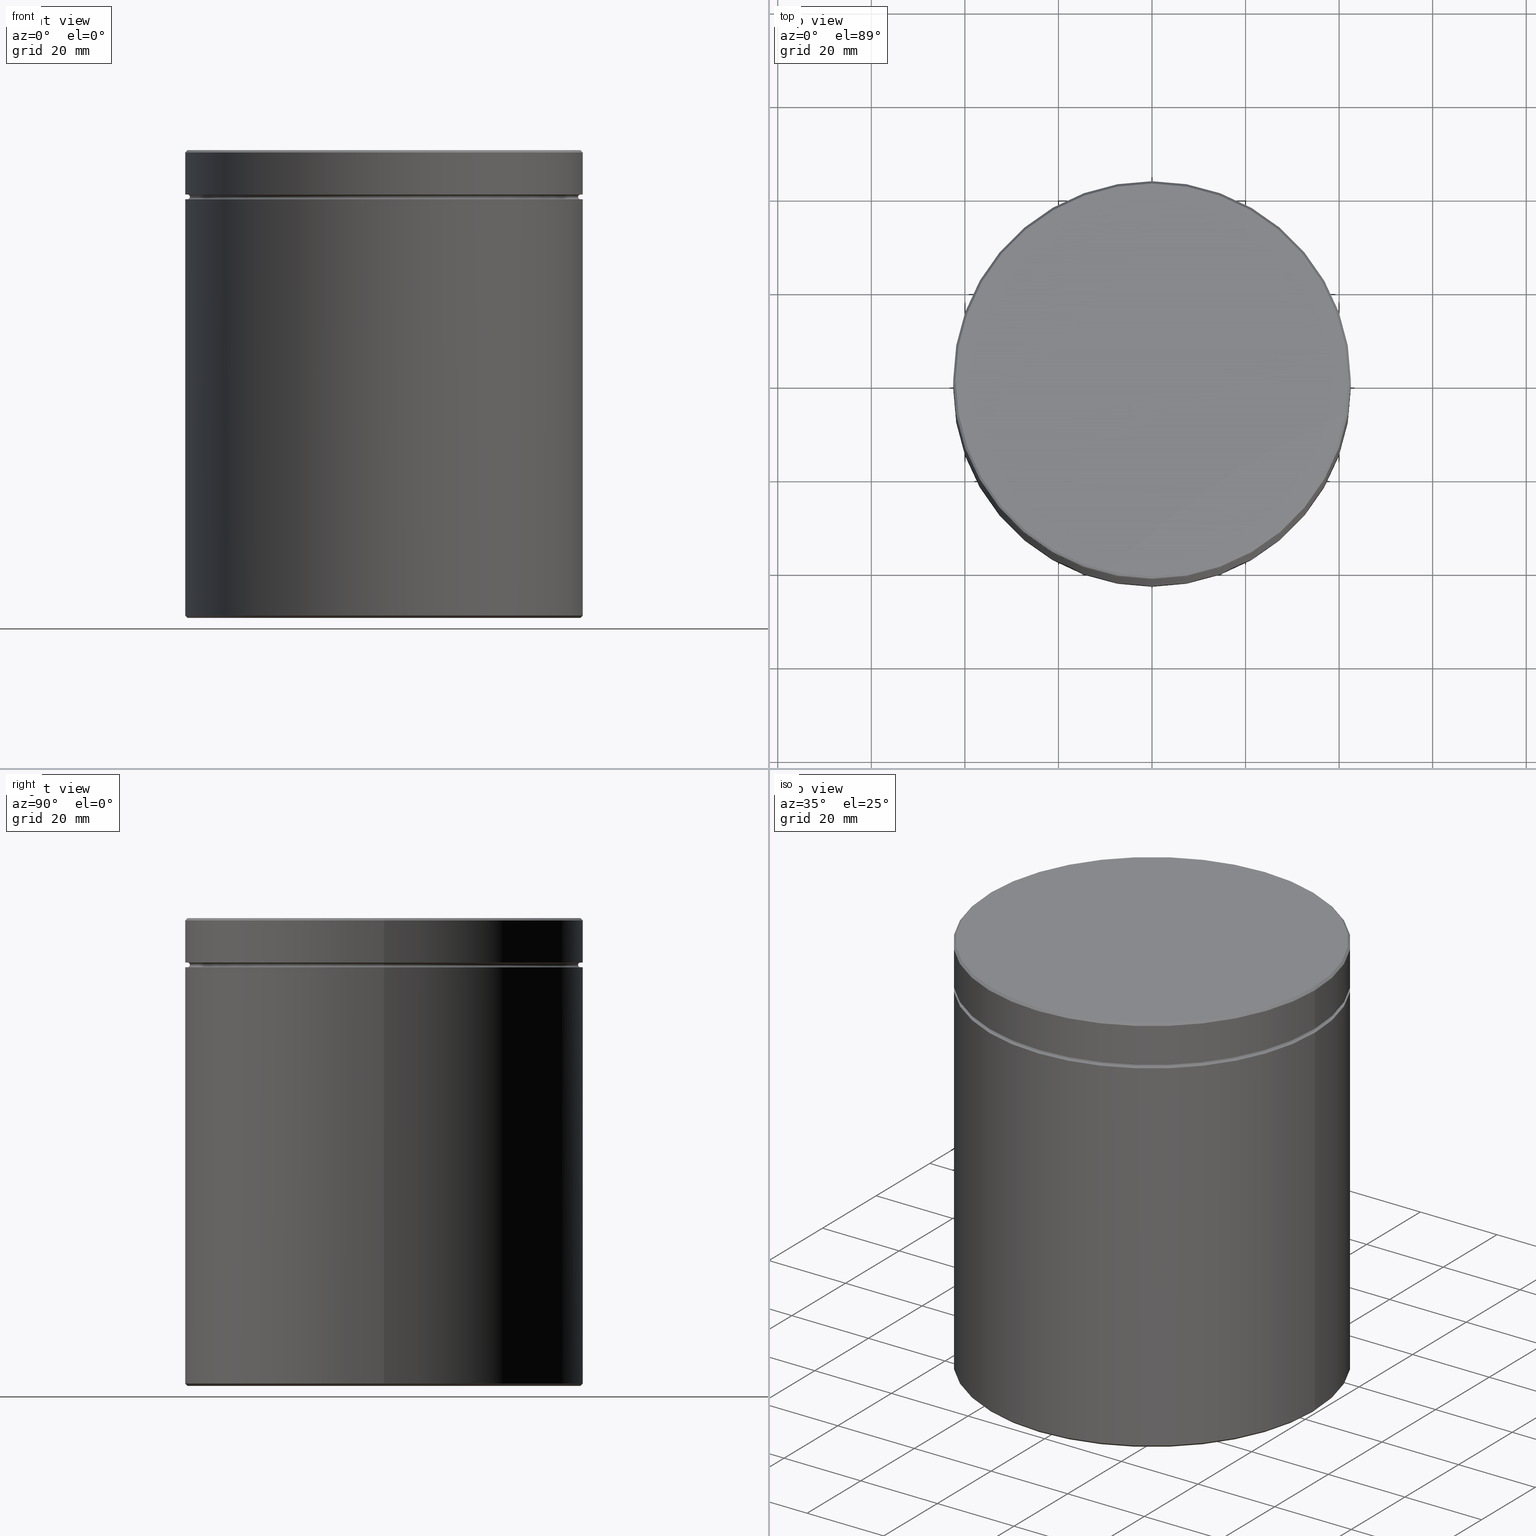
[diagram: canonical four-view strip — front | top / right | iso, engineering-drawing reading convention]
A machine part, canonical four-view strip (front | top / right | iso — engineering-drawing reading convention). The complete STEP part file that produces these views, byte-faithful:
ISO-10303-21;
HEADER;
FILE_DESCRIPTION (( 'STEP AP203' ),
    '1' );
FILE_NAME ('664b.STEP',
    '2024-01-08T12:12:43',
    ( '' ),
    ( '' ),
    'SwSTEP 2.0',
    'SolidWorks 2019',
    '' );
FILE_SCHEMA (( 'CONFIG_CONTROL_DESIGN' ));
ENDSEC;

DATA;
#1 = AXIS2_PLACEMENT_3D ( 'NONE', #100, #400, #237 ) ;
#2 = AXIS2_PLACEMENT_3D ( 'NONE', #247, #305, #340 ) ;
#3 = EDGE_CURVE ( 'NONE', #298, #158, #145, .T. ) ;
#4 = DIRECTION ( 'NONE',  ( 0.000000000000000000, -0.000000000000000000, 1.000000000000000000 ) ) ;
#5 = LOCAL_TIME ( 13, 12, 43.00000000000000000, #89 ) ;
#6 = ORIENTED_EDGE ( 'NONE', *, *, #559, .T. ) ;
#7 = DIRECTION ( 'NONE',  ( 0.000000000000000000, 0.000000000000000000, -1.000000000000000000 ) ) ;
#8 = DIRECTION ( 'NONE',  ( -1.000000000000000000, 0.000000000000000000, 0.000000000000000000 ) ) ;
#9 = PERSON_AND_ORGANIZATION ( #399, #95 ) ;
#10 = EDGE_CURVE ( 'NONE', #490, #368, #404, .T. ) ;
#11 = FACE_BOUND ( 'NONE', #415, .T. ) ;
#12 = PLANE ( 'NONE',  #364 ) ;
#13 = EDGE_CURVE ( 'NONE', #505, #20, #306, .T. ) ;
#14 = DIRECTION ( 'NONE',  ( 1.000000000000000000, 0.000000000000000000, 0.000000000000000000 ) ) ;
#15 = AXIS2_PLACEMENT_3D ( 'NONE', #393, #187, #226 ) ;
#16 = ORIENTED_EDGE ( 'NONE', *, *, #83, .T. ) ;
#17 = ORIENTED_EDGE ( 'NONE', *, *, #359, .F. ) ;
#18 = CARTESIAN_POINT ( 'NONE',  ( 0.000000000000000000, 0.000000000000000000, -10.00000000000000178 ) ) ;
#19 = VERTEX_POINT ( 'NONE', #155 ) ;
#20 = VERTEX_POINT ( 'NONE', #562 ) ;
#21 = DIRECTION ( 'NONE',  ( -0.000000000000000000, -0.000000000000000000, 1.000000000000000000 ) ) ;
#22 = APPROVAL ( #26, 'NEUR�EN�' ) ;
#23 = CC_DESIGN_APPROVAL ( #261, ( #437 ) ) ;
#24 = ORIENTED_EDGE ( 'NONE', *, *, #42, .F. ) ;
#25 = ORIENTED_EDGE ( 'NONE', *, *, #10, .T. ) ;
#26 = APPROVAL_STATUS ( 'not_yet_approved' ) ;
#27 = ORIENTED_EDGE ( 'NONE', *, *, #332, .T. ) ;
#28 = ORIENTED_EDGE ( 'NONE', *, *, #171, .T. ) ;
#29 = CIRCLE ( 'NONE', #74, 0.5000000000000004441 ) ;
#30 = FACE_OUTER_BOUND ( 'NONE', #299, .T. ) ;
#31 = ORIENTED_EDGE ( 'NONE', *, *, #13, .F. ) ;
#32 = VECTOR ( 'NONE', #193, 1000.000000000000000 ) ;
#33 = AXIS2_PLACEMENT_3D ( 'NONE', #411, #21, #154 ) ;
#34 = PLANE ( 'NONE',  #274 ) ;
#35 = PERSON_AND_ORGANIZATION ( #399, #95 ) ;
#36 = CARTESIAN_POINT ( 'NONE',  ( -31.50000000000000000, 0.000000000000000000, -29.00000000000001066 ) ) ;
#37 = ADVANCED_FACE ( 'NONE', ( #317 ), #289, .F. ) ;
#38 = DIRECTION ( 'NONE',  ( 1.000000000000000000, 0.000000000000000000, 0.000000000000000000 ) ) ;
#39 = CARTESIAN_POINT ( 'NONE',  ( -42.00000000000000000, 5.143516556418883322E-15, -10.00000000000000178 ) ) ;
#40 = ORIENTED_EDGE ( 'NONE', *, *, #83, .F. ) ;
#41 = CARTESIAN_POINT ( 'NONE',  ( -31.50000000000000000, 0.000000000000000000, -100.0000000000000000 ) ) ;
#42 = EDGE_CURVE ( 'NONE', #532, #283, #319, .T. ) ;
#43 = VECTOR ( 'NONE', #406, 1000.000000000000000 ) ;
#44 = VECTOR ( 'NONE', #512, 1000.000000000000000 ) ;
#45 = DIRECTION ( 'NONE',  ( -0.000000000000000000, -0.000000000000000000, 1.000000000000000000 ) ) ;
#46 = EDGE_LOOP ( 'NONE', ( #17, #257, #329, #314 ) ) ;
#47 = CARTESIAN_POINT ( 'NONE',  ( 0.000000000000000000, 0.000000000000000000, -0.5000000000000004441 ) ) ;
#48 = ORIENTED_EDGE ( 'NONE', *, *, #401, .T. ) ;
#49 = DIRECTION ( 'NONE',  ( 0.000000000000000000, 0.000000000000000000, -1.000000000000000000 ) ) ;
#50 = AXIS2_PLACEMENT_3D ( 'NONE', #487, #99, #138 ) ;
#51 = DIRECTION ( 'NONE',  ( -0.000000000000000000, -0.000000000000000000, 1.000000000000000000 ) ) ;
#52 = DIRECTION ( 'NONE',  ( -1.000000000000000000, 0.000000000000000000, -0.000000000000000000 ) ) ;
#53 = EDGE_CURVE ( 'NONE', #568, #298, #29, .T. ) ;
#54 = LINE ( 'NONE', #403, #117 ) ;
#55 = CC_DESIGN_DATE_AND_TIME_ASSIGNMENT ( #308, #442, ( #437 ) ) ;
#56 = DIRECTION ( 'NONE',  ( 0.000000000000000000, -0.000000000000000000, 1.000000000000000000 ) ) ;
#57 = DIRECTION ( 'NONE',  ( -1.224646799147353207E-16, 1.000000000000000000, 0.000000000000000000 ) ) ;
#58 = DESIGN_CONTEXT ( 'detailed design', #427, 'design' ) ;
#59 = DIRECTION ( 'NONE',  ( 1.000000000000000000, 0.000000000000000000, 0.000000000000000000 ) ) ;
#60 = CONICAL_SURFACE ( 'NONE', #379, 42.50000000000000000, 0.7853981633974552734 ) ;
#61 = ORIENTED_EDGE ( 'NONE', *, *, #503, .F. ) ;
#62 = ORIENTED_EDGE ( 'NONE', *, *, #148, .F. ) ;
#63 = ADVANCED_FACE ( 'NONE', ( #388 ), #174, .F. ) ;
#64 = DIRECTION ( 'NONE',  ( -1.000000000000000000, 0.000000000000000000, 0.000000000000000000 ) ) ;
#65 = CARTESIAN_POINT ( 'NONE',  ( 0.000000000000000000, 0.000000000000000000, -9.500000000000000000 ) ) ;
#66 = ORIENTED_EDGE ( 'NONE', *, *, #97, .F. ) ;
#67 = CYLINDRICAL_SURFACE ( 'NONE', #2, 42.50000000000000000 ) ;
#68 = AXIS2_PLACEMENT_3D ( 'NONE', #217, #303, #474 ) ;
#69 = VERTEX_POINT ( 'NONE', #41 ) ;
#70 = AXIS2_PLACEMENT_3D ( 'NONE', #114, #346, #75 ) ;
#71 = ORIENTED_EDGE ( 'NONE', *, *, #136, .F. ) ;
#72 = EDGE_LOOP ( 'NONE', ( #516, #28, #249, #543 ) ) ;
#73 = DIRECTION ( 'NONE',  ( -0.000000000000000000, -0.000000000000000000, 1.000000000000000000 ) ) ;
#74 = AXIS2_PLACEMENT_3D ( 'NONE', #567, #77, #356 ) ;
#75 = DIRECTION ( 'NONE',  ( 1.000000000000000000, 0.000000000000000000, 0.000000000000000000 ) ) ;
#76 = ORIENTED_EDGE ( 'NONE', *, *, #467, .F. ) ;
#77 = DIRECTION ( 'NONE',  ( -0.000000000000000000, -1.000000000000000000, -0.000000000000000000 ) ) ;
#78 = APPLICATION_CONTEXT ( 'configuration controlled 3d designs of mechanical parts and assemblies' ) ;
#79 = APPLICATION_PROTOCOL_DEFINITION ( 'international standard', 'config_control_design', 1994, #78 ) ;
#80 = AXIS2_PLACEMENT_3D ( 'NONE', #207, #469, #124 ) ;
#81 = ORIENTED_EDGE ( 'NONE', *, *, #280, .T. ) ;
#82 = FACE_OUTER_BOUND ( 'NONE', #135, .T. ) ;
#83 = EDGE_CURVE ( 'NONE', #283, #532, #352, .T. ) ;
#84 = DIRECTION ( 'NONE',  ( 0.000000000000000000, 0.000000000000000000, -1.000000000000000000 ) ) ;
#85 = CARTESIAN_POINT ( 'NONE',  ( 0.000000000000000000, 0.000000000000000000, -29.00000000000001066 ) ) ;
#86 = PERSON_AND_ORGANIZATION ( #399, #95 ) ;
#87 = AXIS2_PLACEMENT_3D ( 'NONE', #147, #4, #496 ) ;
#88 = CARTESIAN_POINT ( 'NONE',  ( 0.000000000000000000, 42.50000000000000000, -9.499999999999998224 ) ) ;
#89 = COORDINATED_UNIVERSAL_TIME_OFFSET ( 1, 0, .AHEAD. ) ;
#90 = DIRECTION ( 'NONE',  ( 1.000000000000000000, 0.000000000000000000, 0.000000000000000000 ) ) ;
#91 = CARTESIAN_POINT ( 'NONE',  ( 41.50000000000000000, 0.000000000000000000, -10.00000000000000178 ) ) ;
#92 = DATE_AND_TIME ( #233, #387 ) ;
#93 = CARTESIAN_POINT ( 'NONE',  ( 0.000000000000000000, 0.000000000000000000, 0.000000000000000000 ) ) ;
#94 = CONICAL_SURFACE ( 'NONE', #191, 41.99999999999999289, 0.7853981633974552734 ) ;
#95 = ORGANIZATION ( 'NEUR�EN�', 'NEUR�EN�', '' ) ;
#96 = PERSON_AND_ORGANIZATION ( #399, #95 ) ;
#97 = EDGE_CURVE ( 'NONE', #19, #466, #497, .T. ) ;
#98 = SECURITY_CLASSIFICATION ( '', '', #354 ) ;
#99 = DIRECTION ( 'NONE',  ( 0.000000000000000000, 0.000000000000000000, -1.000000000000000000 ) ) ;
#100 = CARTESIAN_POINT ( 'NONE',  ( 0.000000000000000000, 0.000000000000000000, -9.499999999999998224 ) ) ;
#101 = DIRECTION ( 'NONE',  ( 1.000000000000000000, 0.000000000000000000, 0.000000000000000000 ) ) ;
#102 = CYLINDRICAL_SURFACE ( 'NONE', #33, 42.50000000000000000 ) ;
#103 = CIRCLE ( 'NONE', #70, 41.99999999999999289 ) ;
#104 = CC_DESIGN_APPROVAL ( #22, ( #98 ) ) ;
#105 = ADVANCED_FACE ( 'NONE', ( #121, #209 ), #34, .T. ) ;
#106 = DIRECTION ( 'NONE',  ( 1.000000000000000000, 0.000000000000000000, 0.000000000000000000 ) ) ;
#107 = ORIENTED_EDGE ( 'NONE', *, *, #445, .F. ) ;
#108 = ADVANCED_FACE ( 'NONE', ( #520 ), #244, .T. ) ;
#109 = DIRECTION ( 'NONE',  ( 1.000000000000000000, 0.000000000000000000, 0.000000000000000000 ) ) ;
#110 = ADVANCED_FACE ( 'NONE', ( #436 ), #126, .F. ) ;
#111 = ORIENTED_EDGE ( 'NONE', *, *, #320, .F. ) ;
#112 = CIRCLE ( 'NONE', #454, 42.50000000000000000 ) ;
#113 = EDGE_LOOP ( 'NONE', ( #107, #389, #414, #413 ) ) ;
#114 = CARTESIAN_POINT ( 'NONE',  ( 0.000000000000000000, 0.000000000000000000, 0.000000000000000000 ) ) ;
#115 = AXIS2_PLACEMENT_3D ( 'NONE', #558, #132, #424 ) ;
#116 = VERTEX_POINT ( 'NONE', #391 ) ;
#117 = VECTOR ( 'NONE', #238, 1000.000000000000000 ) ;
#118 = CC_DESIGN_PERSON_AND_ORGANIZATION_ASSIGNMENT ( #35, #511, ( #264 ) ) ;
#119 = CARTESIAN_POINT ( 'NONE',  ( -42.50000000000000000, 5.204748896376250896E-15, -99.49999999999997158 ) ) ;
#120 = DIRECTION ( 'NONE',  ( -0.000000000000000000, -0.000000000000000000, 1.000000000000000000 ) ) ;
#121 = FACE_BOUND ( 'NONE', #397, .T. ) ;
#122 = COORDINATED_UNIVERSAL_TIME_OFFSET ( 1, 0, .AHEAD. ) ;
#123 = ORIENTED_EDGE ( 'NONE', *, *, #258, .T. ) ;
#124 = DIRECTION ( 'NONE',  ( -1.000000000000000000, 0.000000000000000000, 0.000000000000000000 ) ) ;
#125 = EDGE_CURVE ( 'NONE', #205, #69, #386, .T. ) ;
#126 = CYLINDRICAL_SURFACE ( 'NONE', #68, 31.50000000000000000 ) ;
#127 = APPROVAL_STATUS ( 'not_yet_approved' ) ;
#128 = AXIS2_PLACEMENT_3D ( 'NONE', #47, #451, #101 ) ;
#129 = ORIENTED_EDGE ( 'NONE', *, *, #334, .F. ) ;
#130 = AXIS2_PLACEMENT_3D ( 'NONE', #373, #253, #106 ) ;
#131 = ORIENTED_EDGE ( 'NONE', *, *, #97, .T. ) ;
#132 = DIRECTION ( 'NONE',  ( -0.000000000000000000, -0.000000000000000000, 1.000000000000000000 ) ) ;
#133 = CARTESIAN_POINT ( 'NONE',  ( 0.000000000000000000, 42.50000000000000000, -100.0000000000000000 ) ) ;
#134 = CARTESIAN_POINT ( 'NONE',  ( -41.99999999999996447, 5.174132726397564743E-15, -100.0000000000000000 ) ) ;
#135 = EDGE_LOOP ( 'NONE', ( #546, #197, #468, #338 ) ) ;
#136 = EDGE_CURVE ( 'NONE', #462, #290, #537, .T. ) ;
#137 = ORIENTED_EDGE ( 'NONE', *, *, #280, .F. ) ;
#138 = DIRECTION ( 'NONE',  ( -1.000000000000000000, 0.000000000000000000, 0.000000000000000000 ) ) ;
#139 = CC_DESIGN_PERSON_AND_ORGANIZATION_ASSIGNMENT ( #392, #565, ( #214 ) ) ;
#140 = LOCAL_TIME ( 13, 12, 43.00000000000000000, #175 ) ;
#141 = CARTESIAN_POINT ( 'NONE',  ( -42.50000000000000000, 5.204748896376250896E-15, 0.000000000000000000 ) ) ;
#142 = LINE ( 'NONE', #438, #184 ) ;
#143 = UNCERTAINTY_MEASURE_WITH_UNIT (LENGTH_MEASURE( 1.000000000000000082E-05 ), #533, 'distance_accuracy_value', 'NONE');
#144 = FACE_OUTER_BOUND ( 'NONE', #46, .T. ) ;
#145 = CIRCLE ( 'NONE', #440, 42.00000000000000000 ) ;
#146 = ORIENTED_EDGE ( 'NONE', *, *, #3, .T. ) ;
#147 = CARTESIAN_POINT ( 'NONE',  ( 0.000000000000000000, 41.50000000000000000, -10.50000000000000178 ) ) ;
#148 = EDGE_CURVE ( 'NONE', #466, #283, #432, .T. ) ;
#149 = EDGE_LOOP ( 'NONE', ( #137, #250, #355, #195 ) ) ;
#150 = EDGE_LOOP ( 'NONE', ( #548, #331, #452, #295 ) ) ;
#151 = CIRCLE ( 'NONE', #470, 31.50000000000000000 ) ;
#152 = AXIS2_PLACEMENT_3D ( 'NONE', #279, #57, #328 ) ;
#153 = LOCAL_TIME ( 13, 12, 43.00000000000000000, #309 ) ;
#154 = DIRECTION ( 'NONE',  ( 1.000000000000000000, 0.000000000000000000, 0.000000000000000000 ) ) ;
#155 = CARTESIAN_POINT ( 'NONE',  ( -42.50000000000000000, 5.204748896376250896E-15, -99.49999999999997158 ) ) ;
#156 = EDGE_CURVE ( 'NONE', #20, #368, #310, .T. ) ;
#157 = AXIS2_PLACEMENT_3D ( 'NONE', #161, #460, #297 ) ;
#158 = VERTEX_POINT ( 'NONE', #494 ) ;
#159 = AXIS2_PLACEMENT_3D ( 'NONE', #85, #84, #262 ) ;
#160 = ADVANCED_BREP_SHAPE_REPRESENTATION ( '664b', ( #225, #245 ), #266 ) ;
#161 = CARTESIAN_POINT ( 'NONE',  ( 0.000000000000000000, 0.000000000000000000, -0.5000000000000004441 ) ) ;
#162 = LOCAL_TIME ( 13, 12, 43.00000000000000000, #122 ) ;
#163 = DIRECTION ( 'NONE',  ( 1.224646799147353207E-16, 1.000000000000000000, 0.000000000000000000 ) ) ;
#164 = EDGE_CURVE ( 'NONE', #568, #202, #323, .T. ) ;
#165 = DIRECTION ( 'NONE',  ( -0.000000000000000000, -0.000000000000000000, 1.000000000000000000 ) ) ;
#166 = CARTESIAN_POINT ( 'NONE',  ( -42.50000000000000000, 5.204748896376250896E-15, -9.500000000000000000 ) ) ;
#167 = DIRECTION ( 'NONE',  ( 1.000000000000000000, 0.000000000000000000, 0.000000000000000000 ) ) ;
#168 = DIRECTION ( 'NONE',  ( -1.000000000000000000, 0.000000000000000000, -0.000000000000000000 ) ) ;
#169 = AXIS2_PLACEMENT_3D ( 'NONE', #18, #360, #194 ) ;
#170 = AXIS2_PLACEMENT_3D ( 'NONE', #93, #278, #8 ) ;
#171 = EDGE_CURVE ( 'NONE', #202, #568, #453, .T. ) ;
#172 = CARTESIAN_POINT ( 'NONE',  ( -42.50000000000000000, 5.204748896376250896E-15, -0.5000000000000004441 ) ) ;
#173 = ORIENTED_EDGE ( 'NONE', *, *, #178, .F. ) ;
#174 = CYLINDRICAL_SURFACE ( 'NONE', #419, 31.50000000000000000 ) ;
#175 = COORDINATED_UNIVERSAL_TIME_OFFSET ( 1, 0, .AHEAD. ) ;
#176 = APPROVAL_DATE_TIME ( #374, #22 ) ;
#177 = LINE ( 'NONE', #36, #44 ) ;
#178 = EDGE_CURVE ( 'NONE', #368, #490, #378, .T. ) ;
#179 = CARTESIAN_POINT ( 'NONE',  ( 0.000000000000000000, 0.000000000000000000, -10.00000000000000178 ) ) ;
#180 = ORIENTED_EDGE ( 'NONE', *, *, #467, .T. ) ;
#181 = DIRECTION ( 'NONE',  ( 1.000000000000000000, 0.000000000000000000, 0.000000000000000000 ) ) ;
#182 = DIRECTION ( 'NONE',  ( 1.000000000000000000, 0.000000000000000000, 0.000000000000000000 ) ) ;
#183 = CIRCLE ( 'NONE', #1, 42.00000000000000000 ) ;
#184 = VECTOR ( 'NONE', #220, 1000.000000000000000 ) ;
#185 = DIRECTION ( 'NONE',  ( 0.000000000000000000, 0.000000000000000000, -1.000000000000000000 ) ) ;
#186 = EDGE_LOOP ( 'NONE', ( #111, #61, #48, #173 ) ) ;
#187 = DIRECTION ( 'NONE',  ( 0.000000000000000000, 0.000000000000000000, -1.000000000000000000 ) ) ;
#188 = FACE_BOUND ( 'NONE', #408, .T. ) ;
#189 = EDGE_CURVE ( 'NONE', #271, #228, #285, .T. ) ;
#190 = FACE_OUTER_BOUND ( 'NONE', #450, .T. ) ;
#191 = AXIS2_PLACEMENT_3D ( 'NONE', #235, #273, #394 ) ;
#192 = CONICAL_SURFACE ( 'NONE', #170, 41.99999999999999289, 0.7853981633974552734 ) ;
#193 = DIRECTION ( 'NONE',  ( 0.7071067811865524577, 0.000000000000000000, 0.7071067811865426878 ) ) ;
#194 = DIRECTION ( 'NONE',  ( 1.000000000000000000, 0.000000000000000000, 0.000000000000000000 ) ) ;
#195 = ORIENTED_EDGE ( 'NONE', *, *, #229, .F. ) ;
#196 = VERTEX_POINT ( 'NONE', #134 ) ;
#197 = ORIENTED_EDGE ( 'NONE', *, *, #445, .T. ) ;
#198 = AXIS2_PLACEMENT_3D ( 'NONE', #459, #380, #64 ) ;
#199 = ORIENTED_EDGE ( 'NONE', *, *, #334, .T. ) ;
#200 = EDGE_LOOP ( 'NONE', ( #526, #199, #522, #483 ) ) ;
#201 = CARTESIAN_POINT ( 'NONE',  ( 31.50000000000000000, 3.857637417314162689E-15, -29.00000000000001066 ) ) ;
#202 = VERTEX_POINT ( 'NONE', #91 ) ;
#203 = DIRECTION ( 'NONE',  ( -0.7071067811865524577, 0.000000000000000000, -0.7071067811865426878 ) ) ;
#204 = ADVANCED_FACE ( 'NONE', ( #190 ), #12, .T. ) ;
#205 = VERTEX_POINT ( 'NONE', #441 ) ;
#206 = CC_DESIGN_SECURITY_CLASSIFICATION ( #98, ( #214 ) ) ;
#207 = CARTESIAN_POINT ( 'NONE',  ( 0.000000000000000000, 0.000000000000000000, -9.999999999999998224 ) ) ;
#208 = CARTESIAN_POINT ( 'NONE',  ( 42.50000000000000000, 0.000000000000000000, -0.5000000000000004441 ) ) ;
#209 = FACE_OUTER_BOUND ( 'NONE', #508, .T. ) ;
#210 = DIRECTION ( 'NONE',  ( -1.000000000000000000, 1.224646799147349509E-16, 0.000000000000000000 ) ) ;
#211 = CYLINDRICAL_SURFACE ( 'NONE', #507, 42.50000000000000000 ) ;
#212 = ADVANCED_FACE ( 'NONE', ( #144 ), #94, .T. ) ;
#213 = CARTESIAN_POINT ( 'NONE',  ( 42.50000000000000000, 0.000000000000000000, 0.000000000000000000 ) ) ;
#214 = PRODUCT_DEFINITION_FORMATION_WITH_SPECIFIED_SOURCE ( 'LIBOVOLN�', '', #264, .NOT_KNOWN. ) ;
#215 = ADVANCED_FACE ( 'NONE', ( #188, #318 ), #544, .T. ) ;
#216 = CARTESIAN_POINT ( 'NONE',  ( 0.000000000000000000, 0.000000000000000000, -10.00000000000000178 ) ) ;
#217 = CARTESIAN_POINT ( 'NONE',  ( 0.000000000000000000, 0.000000000000000000, -29.00000000000001066 ) ) ;
#218 = PERSON_AND_ORGANIZATION ( #399, #95 ) ;
#219 = ORIENTED_EDGE ( 'NONE', *, *, #242, .T. ) ;
#220 = DIRECTION ( 'NONE',  ( -0.000000000000000000, -0.000000000000000000, 1.000000000000000000 ) ) ;
#221 = DIRECTION ( 'NONE',  ( -0.000000000000000000, -0.000000000000000000, 1.000000000000000000 ) ) ;
#222 = DIRECTION ( 'NONE',  ( 0.000000000000000000, 0.000000000000000000, -1.000000000000000000 ) ) ;
#223 = DATE_AND_TIME ( #478, #162 ) ;
#224 = CIRCLE ( 'NONE', #50, 41.99999999999996447 ) ;
#225 = MANIFOLD_SOLID_BREP ( 'Zaoblit1', #545 ) ;
#226 = DIRECTION ( 'NONE',  ( -1.000000000000000000, 0.000000000000000000, 0.000000000000000000 ) ) ;
#227 = AXIS2_PLACEMENT_3D ( 'NONE', #377, #434, #430 ) ;
#228 = VERTEX_POINT ( 'NONE', #491 ) ;
#229 = EDGE_CURVE ( 'NONE', #504, #466, #284, .T. ) ;
#230 = DIRECTION ( 'NONE',  ( -0.000000000000000000, -0.000000000000000000, 1.000000000000000000 ) ) ;
#231 = APPLICATION_PROTOCOL_DEFINITION ( 'international standard', 'config_control_design', 1994, #427 ) ;
#232 = CARTESIAN_POINT ( 'NONE',  ( 0.000000000000000000, 0.000000000000000000, -29.00000000000001066 ) ) ;
#233 = CALENDAR_DATE ( 2024, 8, 1 ) ;
#234 = CARTESIAN_POINT ( 'NONE',  ( -42.50000000000000000, 5.204748896376250896E-15, -10.50000000000000000 ) ) ;
#235 = CARTESIAN_POINT ( 'NONE',  ( 0.000000000000000000, 0.000000000000000000, 0.000000000000000000 ) ) ;
#236 = AXIS2_PLACEMENT_3D ( 'NONE', #563, #517, #167 ) ;
#237 = DIRECTION ( 'NONE',  ( -1.000000000000000000, 0.000000000000000000, 0.000000000000000000 ) ) ;
#238 = DIRECTION ( 'NONE',  ( 0.7071067811865524577, 8.659560562354994488E-17, -0.7071067811865426878 ) ) ;
#239 = ORIENTED_EDGE ( 'NONE', *, *, #311, .T. ) ;
#240 = AXIS2_PLACEMENT_3D ( 'NONE', #179, #300, #182 ) ;
#241 = FACE_OUTER_BOUND ( 'NONE', #551, .T. ) ;
#242 = EDGE_CURVE ( 'NONE', #158, #298, #183, .T. ) ;
#243 = ORIENTED_EDGE ( 'NONE', *, *, #53, .F. ) ;
#244 = CONICAL_SURFACE ( 'NONE', #506, 42.50000000000000000, 0.7853981633974552734 ) ;
#245 = AXIS2_PLACEMENT_3D ( 'NONE', #335, #296, #465 ) ;
#246 = ORIENTED_EDGE ( 'NONE', *, *, #3, .F. ) ;
#247 = CARTESIAN_POINT ( 'NONE',  ( 0.000000000000000000, 0.000000000000000000, 0.000000000000000000 ) ) ;
#248 = CC_DESIGN_PERSON_AND_ORGANIZATION_ASSIGNMENT ( #218, #405, ( #437 ) ) ;
#249 = ORIENTED_EDGE ( 'NONE', *, *, #53, .T. ) ;
#250 = ORIENTED_EDGE ( 'NONE', *, *, #443, .T. ) ;
#251 = MECHANICAL_CONTEXT ( 'NONE', #78, 'mechanical' ) ;
#252 = CARTESIAN_POINT ( 'NONE',  ( -41.99999999999999289, 0.000000000000000000, 0.000000000000000000 ) ) ;
#253 = DIRECTION ( 'NONE',  ( 0.000000000000000000, 0.000000000000000000, -1.000000000000000000 ) ) ;
#254 = DIRECTION ( 'NONE',  ( -0.000000000000000000, -0.000000000000000000, 1.000000000000000000 ) ) ;
#255 = CIRCLE ( 'NONE', #15, 41.99999999999996447 ) ;
#256 = LINE ( 'NONE', #252, #471 ) ;
#257 = ORIENTED_EDGE ( 'NONE', *, *, #320, .T. ) ;
#258 = EDGE_CURVE ( 'NONE', #290, #462, #151, .T. ) ;
#259 = DIRECTION ( 'NONE',  ( 1.000000000000000000, 0.000000000000000000, 0.000000000000000000 ) ) ;
#260 = CARTESIAN_POINT ( 'NONE',  ( 0.000000000000000000, 0.000000000000000000, -9.500000000000000000 ) ) ;
#261 = APPROVAL ( #493, 'NEUR�EN�' ) ;
#262 = DIRECTION ( 'NONE',  ( -1.000000000000000000, 0.000000000000000000, 0.000000000000000000 ) ) ;
#263 = FACE_OUTER_BOUND ( 'NONE', #350, .T. ) ;
#264 = PRODUCT ( '664b', '664b', '', ( #251 ) ) ;
#265 = DIRECTION ( 'NONE',  ( -0.000000000000000000, -0.000000000000000000, 1.000000000000000000 ) ) ;
#266 =( GEOMETRIC_REPRESENTATION_CONTEXT ( 3 ) GLOBAL_UNCERTAINTY_ASSIGNED_CONTEXT ( ( #143 ) ) GLOBAL_UNIT_ASSIGNED_CONTEXT ( ( #533, #449, #495 ) ) REPRESENTATION_CONTEXT ( 'NONE', 'WORKASPACE' ) );
#267 = PERSON_AND_ORGANIZATION_ROLE ( 'creator' ) ;
#268 = ORIENTED_EDGE ( 'NONE', *, *, #156, .F. ) ;
#269 = DIRECTION ( 'NONE',  ( -1.000000000000000000, 0.000000000000000000, 0.000000000000000000 ) ) ;
#270 = CALENDAR_DATE ( 2024, 8, 1 ) ;
#271 = VERTEX_POINT ( 'NONE', #282 ) ;
#272 = FACE_OUTER_BOUND ( 'NONE', #72, .T. ) ;
#273 = DIRECTION ( 'NONE',  ( 0.000000000000000000, 0.000000000000000000, -1.000000000000000000 ) ) ;
#274 = AXIS2_PLACEMENT_3D ( 'NONE', #88, #353, #168 ) ;
#275 = APPROVAL_ROLE ( '' ) ;
#276 = ORIENTED_EDGE ( 'NONE', *, *, #359, .T. ) ;
#277 = FACE_OUTER_BOUND ( 'NONE', #510, .T. ) ;
#278 = DIRECTION ( 'NONE',  ( 0.000000000000000000, 0.000000000000000000, -1.000000000000000000 ) ) ;
#279 = CARTESIAN_POINT ( 'NONE',  ( 42.00000000000000000, 5.143516556418883322E-15, -9.999999999999998224 ) ) ;
#280 = EDGE_CURVE ( 'NONE', #196, #504, #224, .T. ) ;
#281 = FACE_OUTER_BOUND ( 'NONE', #488, .T. ) ;
#282 = CARTESIAN_POINT ( 'NONE',  ( 42.00000000000000000, 0.000000000000000000, -10.50000000000000178 ) ) ;
#283 = VERTEX_POINT ( 'NONE', #363 ) ;
#284 = LINE ( 'NONE', #369, #32 ) ;
#285 = CIRCLE ( 'NONE', #293, 42.00000000000000000 ) ;
#286 = ORIENTED_EDGE ( 'NONE', *, *, #550, .T. ) ;
#287 = LINE ( 'NONE', #201, #444 ) ;
#288 = ORIENTED_EDGE ( 'NONE', *, *, #433, .T. ) ;
#289 = TOROIDAL_SURFACE ( 'NONE', #240, 42.00000000000000000, 0.5000000000000000000 ) ;
#290 = VERTEX_POINT ( 'NONE', #489 ) ;
#291 = ADVANCED_FACE ( 'NONE', ( #538 ), #192, .T. ) ;
#292 = FACE_OUTER_BOUND ( 'NONE', #302, .T. ) ;
#293 = AXIS2_PLACEMENT_3D ( 'NONE', #530, #222, #59 ) ;
#294 = VECTOR ( 'NONE', #446, 1000.000000000000000 ) ;
#295 = ORIENTED_EDGE ( 'NONE', *, *, #178, .T. ) ;
#296 = DIRECTION ( 'NONE',  ( 0.000000000000000000, 0.000000000000000000, 1.000000000000000000 ) ) ;
#297 = DIRECTION ( 'NONE',  ( 1.000000000000000000, 0.000000000000000000, 0.000000000000000000 ) ) ;
#298 = VERTEX_POINT ( 'NONE', #322 ) ;
#299 = EDGE_LOOP ( 'NONE', ( #180, #286, #25, #268 ) ) ;
#300 = DIRECTION ( 'NONE',  ( -0.000000000000000000, -0.000000000000000000, 1.000000000000000000 ) ) ;
#301 = EDGE_CURVE ( 'NONE', #202, #158, #330, .T. ) ;
#302 = EDGE_LOOP ( 'NONE', ( #327, #239, #40, #62 ) ) ;
#303 = DIRECTION ( 'NONE',  ( -0.000000000000000000, -0.000000000000000000, -1.000000000000000000 ) ) ;
#304 = LINE ( 'NONE', #119, #553 ) ;
#305 = DIRECTION ( 'NONE',  ( -0.000000000000000000, -0.000000000000000000, 1.000000000000000000 ) ) ;
#306 = CIRCLE ( 'NONE', #410, 42.50000000000000000 ) ;
#307 = DIRECTION ( 'NONE',  ( 0.000000000000000000, 0.000000000000000000, -1.000000000000000000 ) ) ;
#308 = DATE_AND_TIME ( #349, #140 ) ;
#309 = COORDINATED_UNIVERSAL_TIME_OFFSET ( 1, 0, .AHEAD. ) ;
#310 = LINE ( 'NONE', #482, #43 ) ;
#311 = EDGE_CURVE ( 'NONE', #19, #532, #534, .T. ) ;
#312 = CIRCLE ( 'NONE', #365, 0.5000000000000004441 ) ;
#313 = PERSON_AND_ORGANIZATION_ROLE ( 'classification_officer' ) ;
#314 = ORIENTED_EDGE ( 'NONE', *, *, #401, .F. ) ;
#315 = PLANE ( 'NONE',  #343 ) ;
#316 = VERTEX_POINT ( 'NONE', #326 ) ;
#317 = FACE_OUTER_BOUND ( 'NONE', #113, .T. ) ;
#318 = FACE_OUTER_BOUND ( 'NONE', #371, .T. ) ;
#319 = CIRCLE ( 'NONE', #361, 42.50000000000000000 ) ;
#320 = EDGE_CURVE ( 'NONE', #116, #368, #54, .T. ) ;
#321 = ORIENTED_EDGE ( 'NONE', *, *, #136, .T. ) ;
#322 = CARTESIAN_POINT ( 'NONE',  ( -42.00000000000000000, 0.000000000000000000, -9.499999999999998224 ) ) ;
#323 = CIRCLE ( 'NONE', #336, 41.50000000000000000 ) ;
#324 = AXIS2_PLACEMENT_3D ( 'NONE', #216, #254, #421 ) ;
#325 = PRODUCT_RELATED_PRODUCT_CATEGORY ( 'detail', '', ( #264 ) ) ;
#326 = CARTESIAN_POINT ( 'NONE',  ( -41.99999999999999289, 0.000000000000000000, 0.000000000000000000 ) ) ;
#327 = ORIENTED_EDGE ( 'NONE', *, *, #375, .T. ) ;
#328 = DIRECTION ( 'NONE',  ( -1.000000000000000000, -1.224646799147349509E-16, 0.000000000000000000 ) ) ;
#329 = ORIENTED_EDGE ( 'NONE', *, *, #10, .F. ) ;
#330 = CIRCLE ( 'NONE', #152, 0.5000000000000004441 ) ;
#331 = ORIENTED_EDGE ( 'NONE', *, *, #13, .T. ) ;
#332 = EDGE_CURVE ( 'NONE', #228, #271, #499, .T. ) ;
#333 = CARTESIAN_POINT ( 'NONE',  ( 0.000000000000000000, 0.000000000000000000, 0.000000000000000000 ) ) ;
#334 = EDGE_CURVE ( 'NONE', #290, #205, #287, .T. ) ;
#335 = CARTESIAN_POINT ( 'NONE',  ( 0.000000000000000000, 0.000000000000000000, 0.000000000000000000 ) ) ;
#336 = AXIS2_PLACEMENT_3D ( 'NONE', #407, #230, #14 ) ;
#337 = APPROVAL_PERSON_ORGANIZATION ( #521, #476, #275 ) ;
#338 = ORIENTED_EDGE ( 'NONE', *, *, #461, .F. ) ;
#339 = DIRECTION ( 'NONE',  ( -1.000000000000000000, 0.000000000000000000, 0.000000000000000000 ) ) ;
#340 = DIRECTION ( 'NONE',  ( 1.000000000000000000, 0.000000000000000000, 0.000000000000000000 ) ) ;
#341 = EDGE_CURVE ( 'NONE', #69, #205, #539, .T. ) ;
#342 = VECTOR ( 'NONE', #45, 1000.000000000000000 ) ;
#343 = AXIS2_PLACEMENT_3D ( 'NONE', #484, #56, #90 ) ;
#344 = CARTESIAN_POINT ( 'NONE',  ( 0.000000000000000000, 0.000000000000000000, -99.49999999999997158 ) ) ;
#345 = ADVANCED_FACE ( 'NONE', ( #241 ), #102, .T. ) ;
#346 = DIRECTION ( 'NONE',  ( -0.000000000000000000, -0.000000000000000000, 1.000000000000000000 ) ) ;
#347 = ORIENTED_EDGE ( 'NONE', *, *, #503, .T. ) ;
#348 = CARTESIAN_POINT ( 'NONE',  ( 0.000000000000000000, 0.000000000000000000, -100.0000000000000000 ) ) ;
#349 = CALENDAR_DATE ( 2024, 8, 1 ) ;
#350 = EDGE_LOOP ( 'NONE', ( #513, #376, #246, #243 ) ) ;
#351 = CARTESIAN_POINT ( 'NONE',  ( -31.50000000000000000, 0.000000000000000000, -29.00000000000001066 ) ) ;
#352 = CIRCLE ( 'NONE', #515, 42.50000000000000000 ) ;
#353 = DIRECTION ( 'NONE',  ( 0.000000000000000000, 0.000000000000000000, -1.000000000000000000 ) ) ;
#354 = SECURITY_CLASSIFICATION_LEVEL ( 'unclassified' ) ;
#355 = ORIENTED_EDGE ( 'NONE', *, *, #375, .F. ) ;
#356 = DIRECTION ( 'NONE',  ( 0.000000000000000000, 0.000000000000000000, -1.000000000000000000 ) ) ;
#357 = AXIS2_PLACEMENT_3D ( 'NONE', #554, #390, #339 ) ;
#358 = APPROVAL_DATE_TIME ( #92, #261 ) ;
#359 = EDGE_CURVE ( 'NONE', #116, #316, #527, .T. ) ;
#360 = DIRECTION ( 'NONE',  ( -0.000000000000000000, -0.000000000000000000, 1.000000000000000000 ) ) ;
#361 = AXIS2_PLACEMENT_3D ( 'NONE', #472, #221, #259 ) ;
#362 = ADVANCED_FACE ( 'NONE', ( #292 ), #67, .T. ) ;
#363 = CARTESIAN_POINT ( 'NONE',  ( 42.50000000000000000, 0.000000000000000000, -10.50000000000000000 ) ) ;
#364 = AXIS2_PLACEMENT_3D ( 'NONE', #232, #185, #52 ) ;
#365 = AXIS2_PLACEMENT_3D ( 'NONE', #39, #163, #210 ) ;
#366 = PLANE ( 'NONE',  #463 ) ;
#367 = DIRECTION ( 'NONE',  ( 0.000000000000000000, 0.000000000000000000, -1.000000000000000000 ) ) ;
#368 = VERTEX_POINT ( 'NONE', #208 ) ;
#369 = CARTESIAN_POINT ( 'NONE',  ( 42.50000000000000000, 0.000000000000000000, -99.49999999999997158 ) ) ;
#370 = ADVANCED_FACE ( 'NONE', ( #557 ), #211, .T. ) ;
#371 = EDGE_LOOP ( 'NONE', ( #16, #457 ) ) ;
#372 = APPROVAL_PERSON_ORGANIZATION ( #9, #261, #439 ) ;
#373 = CARTESIAN_POINT ( 'NONE',  ( 0.000000000000000000, 0.000000000000000000, -10.50000000000000178 ) ) ;
#374 = DATE_AND_TIME ( #485, #153 ) ;
#375 = EDGE_CURVE ( 'NONE', #466, #19, #492, .T. ) ;
#376 = ORIENTED_EDGE ( 'NONE', *, *, #301, .T. ) ;
#377 = CARTESIAN_POINT ( 'NONE',  ( 42.00000000000000000, 0.000000000000000000, -10.00000000000000178 ) ) ;
#378 = CIRCLE ( 'NONE', #128, 42.50000000000000000 ) ;
#379 = AXIS2_PLACEMENT_3D ( 'NONE', #529, #535, #181 ) ;
#380 = DIRECTION ( 'NONE',  ( 0.000000000000000000, 0.000000000000000000, -1.000000000000000000 ) ) ;
#381 = ORIENTED_EDGE ( 'NONE', *, *, #189, .T. ) ;
#382 = CYLINDRICAL_SURFACE ( 'NONE', #236, 42.50000000000000000 ) ;
#383 = CARTESIAN_POINT ( 'NONE',  ( 0.000000000000000000, 0.000000000000000000, -10.50000000000000000 ) ) ;
#384 = ADVANCED_FACE ( 'NONE', ( #263 ), #560, .F. ) ;
#385 = DIRECTION ( 'NONE',  ( -0.000000000000000000, -0.000000000000000000, 1.000000000000000000 ) ) ;
#386 = CIRCLE ( 'NONE', #422, 31.50000000000000000 ) ;
#387 = LOCAL_TIME ( 13, 12, 43.00000000000000000, #447 ) ;
#388 = FACE_OUTER_BOUND ( 'NONE', #409, .T. ) ;
#389 = ORIENTED_EDGE ( 'NONE', *, *, #171, .F. ) ;
#390 = DIRECTION ( 'NONE',  ( -0.000000000000000000, -0.000000000000000000, 1.000000000000000000 ) ) ;
#391 = CARTESIAN_POINT ( 'NONE',  ( 41.99999999999999289, 5.174132726397566320E-15, 0.000000000000000000 ) ) ;
#392 = PERSON_AND_ORGANIZATION ( #399, #95 ) ;
#393 = CARTESIAN_POINT ( 'NONE',  ( 0.000000000000000000, 0.000000000000000000, -100.0000000000000000 ) ) ;
#394 = DIRECTION ( 'NONE',  ( -1.000000000000000000, 0.000000000000000000, 0.000000000000000000 ) ) ;
#395 = CIRCLE ( 'NONE', #227, 0.5000000000000004441 ) ;
#396 = APPROVAL_DATE_TIME ( #223, #476 ) ;
#397 = EDGE_LOOP ( 'NONE', ( #146, #219 ) ) ;
#398 = CARTESIAN_POINT ( 'NONE',  ( -41.50000000000000000, 5.112900386440199535E-15, -10.00000000000000178 ) ) ;
#399 = PERSON ( 'NEUR�EN�', 'NEUR�EN�', 'NEUR�EN�', ('NEUR�EN�'), ('NEUR�EN�'), ('NEUR�EN�') ) ;
#400 = DIRECTION ( 'NONE',  ( -0.000000000000000000, -0.000000000000000000, 1.000000000000000000 ) ) ;
#401 = EDGE_CURVE ( 'NONE', #316, #490, #256, .T. ) ;
#402 = FACE_OUTER_BOUND ( 'NONE', #547, .T. ) ;
#403 = CARTESIAN_POINT ( 'NONE',  ( 41.99999999999999289, 5.143516556418882533E-15, 0.000000000000000000 ) ) ;
#404 = CIRCLE ( 'NONE', #157, 42.50000000000000000 ) ;
#405 = PERSON_AND_ORGANIZATION_ROLE ( 'creator' ) ;
#406 = DIRECTION ( 'NONE',  ( -0.000000000000000000, -0.000000000000000000, 1.000000000000000000 ) ) ;
#407 = CARTESIAN_POINT ( 'NONE',  ( 0.000000000000000000, 0.000000000000000000, -10.00000000000000178 ) ) ;
#408 = EDGE_LOOP ( 'NONE', ( #381, #27 ) ) ;
#409 = EDGE_LOOP ( 'NONE', ( #129, #71, #288, #498 ) ) ;
#410 = AXIS2_PLACEMENT_3D ( 'NONE', #65, #165, #549 ) ;
#411 = CARTESIAN_POINT ( 'NONE',  ( 0.000000000000000000, 0.000000000000000000, 0.000000000000000000 ) ) ;
#412 = AXIS2_PLACEMENT_3D ( 'NONE', #333, #501, #109 ) ;
#413 = ORIENTED_EDGE ( 'NONE', *, *, #332, .F. ) ;
#414 = ORIENTED_EDGE ( 'NONE', *, *, #461, .T. ) ;
#415 = EDGE_LOOP ( 'NONE', ( #425, #500 ) ) ;
#416 = CC_DESIGN_PERSON_AND_ORGANIZATION_ASSIGNMENT ( #86, #267, ( #214 ) ) ;
#417 = ORIENTED_EDGE ( 'NONE', *, *, #311, .F. ) ;
#418 = APPROVAL_ROLE ( '' ) ;
#419 = AXIS2_PLACEMENT_3D ( 'NONE', #528, #428, #564 ) ;
#420 = DIRECTION ( 'NONE',  ( -0.000000000000000000, -0.000000000000000000, -1.000000000000000000 ) ) ;
#421 = DIRECTION ( 'NONE',  ( 1.000000000000000000, 0.000000000000000000, 0.000000000000000000 ) ) ;
#422 = AXIS2_PLACEMENT_3D ( 'NONE', #348, #307, #477 ) ;
#423 = AXIS2_PLACEMENT_3D ( 'NONE', #569, #49, #269 ) ;
#424 = DIRECTION ( 'NONE',  ( -1.000000000000000000, 0.000000000000000000, 0.000000000000000000 ) ) ;
#425 = ORIENTED_EDGE ( 'NONE', *, *, #341, .F. ) ;
#426 = ADVANCED_FACE ( 'NONE', ( #30 ), #382, .T. ) ;
#427 = APPLICATION_CONTEXT ( 'configuration controlled 3d designs of mechanical parts and assemblies' ) ;
#428 = DIRECTION ( 'NONE',  ( -0.000000000000000000, -0.000000000000000000, -1.000000000000000000 ) ) ;
#429 = SHAPE_DEFINITION_REPRESENTATION ( #480, #160 ) ;
#430 = DIRECTION ( 'NONE',  ( 0.000000000000000000, 0.000000000000000000, -1.000000000000000000 ) ) ;
#431 = ORIENTED_EDGE ( 'NONE', *, *, #443, .F. ) ;
#432 = LINE ( 'NONE', #213, #342 ) ;
#433 = EDGE_CURVE ( 'NONE', #462, #69, #177, .T. ) ;
#434 = DIRECTION ( 'NONE',  ( 0.000000000000000000, -1.000000000000000000, 0.000000000000000000 ) ) ;
#435 = TOROIDAL_SURFACE ( 'NONE', #423, 42.00000000000000000, 0.5000000000000000000 ) ;
#436 = FACE_OUTER_BOUND ( 'NONE', #200, .T. ) ;
#437 = PRODUCT_DEFINITION ( 'NEZN�M�', '', #214, #58 ) ;
#438 = CARTESIAN_POINT ( 'NONE',  ( -42.50000000000000000, 5.204748896376250896E-15, 0.000000000000000000 ) ) ;
#439 = APPROVAL_ROLE ( '' ) ;
#440 = AXIS2_PLACEMENT_3D ( 'NONE', #555, #73, #552 ) ;
#441 = CARTESIAN_POINT ( 'NONE',  ( 31.50000000000000000, 3.857637417314162689E-15, -100.0000000000000000 ) ) ;
#442 = DATE_TIME_ROLE ( 'creation_date' ) ;
#443 = EDGE_CURVE ( 'NONE', #196, #19, #304, .T. ) ;
#444 = VECTOR ( 'NONE', #420, 1000.000000000000000 ) ;
#445 = EDGE_CURVE ( 'NONE', #568, #228, #312, .T. ) ;
#446 = DIRECTION ( 'NONE',  ( -0.000000000000000000, -0.000000000000000000, 1.000000000000000000 ) ) ;
#447 = COORDINATED_UNIVERSAL_TIME_OFFSET ( 1, 0, .AHEAD. ) ;
#448 = CARTESIAN_POINT ( 'NONE',  ( 0.000000000000000000, 0.000000000000000000, -29.00000000000001066 ) ) ;
#449 =( NAMED_UNIT ( * ) PLANE_ANGLE_UNIT ( ) SI_UNIT ( $, .RADIAN. ) );
#450 = EDGE_LOOP ( 'NONE', ( #321, #123 ) ) ;
#451 = DIRECTION ( 'NONE',  ( 0.000000000000000000, 0.000000000000000000, -1.000000000000000000 ) ) ;
#452 = ORIENTED_EDGE ( 'NONE', *, *, #156, .T. ) ;
#453 = CIRCLE ( 'NONE', #169, 41.50000000000000000 ) ;
#454 = AXIS2_PLACEMENT_3D ( 'NONE', #260, #385, #479 ) ;
#455 = ADVANCED_FACE ( 'NONE', ( #82 ), #518, .F. ) ;
#456 = APPROVAL_PERSON_ORGANIZATION ( #96, #22, #418 ) ;
#457 = ORIENTED_EDGE ( 'NONE', *, *, #42, .T. ) ;
#458 = DIRECTION ( 'NONE',  ( 1.000000000000000000, 0.000000000000000000, 0.000000000000000000 ) ) ;
#459 = CARTESIAN_POINT ( 'NONE',  ( 0.000000000000000000, 0.000000000000000000, -100.0000000000000000 ) ) ;
#460 = DIRECTION ( 'NONE',  ( 0.000000000000000000, 0.000000000000000000, -1.000000000000000000 ) ) ;
#461 = EDGE_CURVE ( 'NONE', #202, #271, #395, .T. ) ;
#462 = VERTEX_POINT ( 'NONE', #351 ) ;
#463 = AXIS2_PLACEMENT_3D ( 'NONE', #133, #7, #540 ) ;
#464 = ORIENTED_EDGE ( 'NONE', *, *, #148, .T. ) ;
#465 = DIRECTION ( 'NONE',  ( 1.000000000000000000, 0.000000000000000000, 0.000000000000000000 ) ) ;
#466 = VERTEX_POINT ( 'NONE', #523 ) ;
#467 = EDGE_CURVE ( 'NONE', #20, #505, #112, .T. ) ;
#468 = ORIENTED_EDGE ( 'NONE', *, *, #189, .F. ) ;
#469 = DIRECTION ( 'NONE',  ( 0.000000000000000000, 0.000000000000000000, -1.000000000000000000 ) ) ;
#470 = AXIS2_PLACEMENT_3D ( 'NONE', #448, #367, #542 ) ;
#471 = VECTOR ( 'NONE', #203, 1000.000000000000000 ) ;
#472 = CARTESIAN_POINT ( 'NONE',  ( 0.000000000000000000, 0.000000000000000000, -10.50000000000000000 ) ) ;
#473 = DIRECTION ( 'NONE',  ( -0.7071067811865524577, 8.659560562354994488E-17, 0.7071067811865426878 ) ) ;
#474 = DIRECTION ( 'NONE',  ( -1.000000000000000000, 0.000000000000000000, 0.000000000000000000 ) ) ;
#475 = CARTESIAN_POINT ( 'NONE',  ( 0.000000000000000000, 0.000000000000000000, 0.000000000000000000 ) ) ;
#476 = APPROVAL ( #127, 'NEUR�EN�' ) ;
#477 = DIRECTION ( 'NONE',  ( -1.000000000000000000, 0.000000000000000000, 0.000000000000000000 ) ) ;
#478 = CALENDAR_DATE ( 2024, 8, 1 ) ;
#479 = DIRECTION ( 'NONE',  ( 1.000000000000000000, 0.000000000000000000, 0.000000000000000000 ) ) ;
#480 = PRODUCT_DEFINITION_SHAPE ( 'NONE', 'NONE',  #437 ) ;
#481 = CC_DESIGN_APPROVAL ( #476, ( #214 ) ) ;
#482 = CARTESIAN_POINT ( 'NONE',  ( 42.50000000000000000, 0.000000000000000000, 0.000000000000000000 ) ) ;
#483 = ORIENTED_EDGE ( 'NONE', *, *, #433, .F. ) ;
#484 = CARTESIAN_POINT ( 'NONE',  ( 0.000000000000000000, 0.000000000000000000, 0.000000000000000000 ) ) ;
#485 = CALENDAR_DATE ( 2024, 8, 1 ) ;
#486 = DATE_TIME_ROLE ( 'classification_date' ) ;
#487 = CARTESIAN_POINT ( 'NONE',  ( 0.000000000000000000, 0.000000000000000000, -100.0000000000000000 ) ) ;
#488 = EDGE_LOOP ( 'NONE', ( #347, #276 ) ) ;
#489 = CARTESIAN_POINT ( 'NONE',  ( 31.50000000000000000, 3.857637417314162689E-15, -29.00000000000001066 ) ) ;
#490 = VERTEX_POINT ( 'NONE', #172 ) ;
#491 = CARTESIAN_POINT ( 'NONE',  ( -42.00000000000000000, 5.143516556418883322E-15, -10.50000000000000178 ) ) ;
#492 = CIRCLE ( 'NONE', #357, 42.50000000000000000 ) ;
#493 = APPROVAL_STATUS ( 'not_yet_approved' ) ;
#494 = CARTESIAN_POINT ( 'NONE',  ( 42.00000000000000000, 5.143516556418883322E-15, -9.499999999999998224 ) ) ;
#495 =( NAMED_UNIT ( * ) SI_UNIT ( $, .STERADIAN. ) SOLID_ANGLE_UNIT ( ) );
#496 = DIRECTION ( 'NONE',  ( 1.000000000000000000, 0.000000000000000000, 0.000000000000000000 ) ) ;
#497 = CIRCLE ( 'NONE', #115, 42.50000000000000000 ) ;
#498 = ORIENTED_EDGE ( 'NONE', *, *, #341, .T. ) ;
#499 = CIRCLE ( 'NONE', #130, 42.00000000000000000 ) ;
#500 = ORIENTED_EDGE ( 'NONE', *, *, #125, .F. ) ;
#501 = DIRECTION ( 'NONE',  ( -0.000000000000000000, -0.000000000000000000, 1.000000000000000000 ) ) ;
#502 = DATE_AND_TIME ( #270, #5 ) ;
#503 = EDGE_CURVE ( 'NONE', #316, #116, #103, .T. ) ;
#504 = VERTEX_POINT ( 'NONE', #556 ) ;
#505 = VERTEX_POINT ( 'NONE', #166 ) ;
#506 = AXIS2_PLACEMENT_3D ( 'NONE', #344, #120, #524 ) ;
#507 = AXIS2_PLACEMENT_3D ( 'NONE', #475, #51, #458 ) ;
#508 = EDGE_LOOP ( 'NONE', ( #76, #31 ) ) ;
#509 = ADVANCED_FACE ( 'NONE', ( #277 ), #60, .T. ) ;
#510 = EDGE_LOOP ( 'NONE', ( #431, #566, #561, #66 ) ) ;
#511 = PERSON_AND_ORGANIZATION_ROLE ( 'design_owner' ) ;
#512 = DIRECTION ( 'NONE',  ( -0.000000000000000000, -0.000000000000000000, -1.000000000000000000 ) ) ;
#513 = ORIENTED_EDGE ( 'NONE', *, *, #164, .T. ) ;
#514 = ADVANCED_FACE ( 'NONE', ( #281 ), #315, .T. ) ;
#515 = AXIS2_PLACEMENT_3D ( 'NONE', #383, #265, #38 ) ;
#516 = ORIENTED_EDGE ( 'NONE', *, *, #301, .F. ) ;
#517 = DIRECTION ( 'NONE',  ( -0.000000000000000000, -0.000000000000000000, 1.000000000000000000 ) ) ;
#518 = TOROIDAL_SURFACE ( 'NONE', #324, 42.00000000000000000, 0.5000000000000000000 ) ;
#519 = CC_DESIGN_PERSON_AND_ORGANIZATION_ASSIGNMENT ( #525, #313, ( #98 ) ) ;
#520 = FACE_OUTER_BOUND ( 'NONE', #149, .T. ) ;
#521 = PERSON_AND_ORGANIZATION ( #399, #95 ) ;
#522 = ORIENTED_EDGE ( 'NONE', *, *, #125, .T. ) ;
#523 = CARTESIAN_POINT ( 'NONE',  ( 42.50000000000000000, 0.000000000000000000, -99.49999999999997158 ) ) ;
#524 = DIRECTION ( 'NONE',  ( 1.000000000000000000, 0.000000000000000000, 0.000000000000000000 ) ) ;
#525 = PERSON_AND_ORGANIZATION ( #399, #95 ) ;
#526 = ORIENTED_EDGE ( 'NONE', *, *, #258, .F. ) ;
#527 = CIRCLE ( 'NONE', #412, 41.99999999999999289 ) ;
#528 = CARTESIAN_POINT ( 'NONE',  ( 0.000000000000000000, 0.000000000000000000, -29.00000000000001066 ) ) ;
#529 = CARTESIAN_POINT ( 'NONE',  ( 0.000000000000000000, 0.000000000000000000, -99.49999999999997158 ) ) ;
#530 = CARTESIAN_POINT ( 'NONE',  ( 0.000000000000000000, 0.000000000000000000, -10.50000000000000178 ) ) ;
#531 = ADVANCED_FACE ( 'NONE', ( #272 ), #435, .F. ) ;
#532 = VERTEX_POINT ( 'NONE', #234 ) ;
#533 =( LENGTH_UNIT ( ) NAMED_UNIT ( * ) SI_UNIT ( .MILLI., .METRE. ) );
#534 = LINE ( 'NONE', #141, #294 ) ;
#535 = DIRECTION ( 'NONE',  ( -0.000000000000000000, -0.000000000000000000, 1.000000000000000000 ) ) ;
#536 = ADVANCED_FACE ( 'NONE', ( #402, #11 ), #366, .T. ) ;
#537 = CIRCLE ( 'NONE', #159, 31.50000000000000000 ) ;
#538 = FACE_OUTER_BOUND ( 'NONE', #186, .T. ) ;
#539 = CIRCLE ( 'NONE', #198, 31.50000000000000000 ) ;
#540 = DIRECTION ( 'NONE',  ( -1.000000000000000000, 0.000000000000000000, -0.000000000000000000 ) ) ;
#541 = CC_DESIGN_DATE_AND_TIME_ASSIGNMENT ( #502, #486, ( #98 ) ) ;
#542 = DIRECTION ( 'NONE',  ( -1.000000000000000000, 0.000000000000000000, 0.000000000000000000 ) ) ;
#543 = ORIENTED_EDGE ( 'NONE', *, *, #242, .F. ) ;
#544 = PLANE ( 'NONE',  #87 ) ;
#545 = CLOSED_SHELL ( 'NONE', ( #384, #455, #108, #212, #110, #362, #426, #536, #514, #370, #105, #215, #345, #63, #204, #291, #509, #37, #531 ) ) ;
#546 = ORIENTED_EDGE ( 'NONE', *, *, #164, .F. ) ;
#547 = EDGE_LOOP ( 'NONE', ( #6, #81 ) ) ;
#548 = ORIENTED_EDGE ( 'NONE', *, *, #550, .F. ) ;
#549 = DIRECTION ( 'NONE',  ( 1.000000000000000000, 0.000000000000000000, 0.000000000000000000 ) ) ;
#550 = EDGE_CURVE ( 'NONE', #505, #490, #142, .T. ) ;
#551 = EDGE_LOOP ( 'NONE', ( #417, #131, #464, #24 ) ) ;
#552 = DIRECTION ( 'NONE',  ( -1.000000000000000000, 0.000000000000000000, 0.000000000000000000 ) ) ;
#553 = VECTOR ( 'NONE', #473, 1000.000000000000000 ) ;
#554 = CARTESIAN_POINT ( 'NONE',  ( 0.000000000000000000, 0.000000000000000000, -99.49999999999997158 ) ) ;
#555 = CARTESIAN_POINT ( 'NONE',  ( 0.000000000000000000, 0.000000000000000000, -9.499999999999998224 ) ) ;
#556 = CARTESIAN_POINT ( 'NONE',  ( 41.99999999999996447, 0.000000000000000000, -100.0000000000000000 ) ) ;
#557 = FACE_OUTER_BOUND ( 'NONE', #150, .T. ) ;
#558 = CARTESIAN_POINT ( 'NONE',  ( 0.000000000000000000, 0.000000000000000000, -99.49999999999997158 ) ) ;
#559 = EDGE_CURVE ( 'NONE', #504, #196, #255, .T. ) ;
#560 = TOROIDAL_SURFACE ( 'NONE', #80, 42.00000000000000000, 0.5000000000000000000 ) ;
#561 = ORIENTED_EDGE ( 'NONE', *, *, #229, .T. ) ;
#562 = CARTESIAN_POINT ( 'NONE',  ( 42.50000000000000000, 0.000000000000000000, -9.500000000000000000 ) ) ;
#563 = CARTESIAN_POINT ( 'NONE',  ( 0.000000000000000000, 0.000000000000000000, 0.000000000000000000 ) ) ;
#564 = DIRECTION ( 'NONE',  ( -1.000000000000000000, 0.000000000000000000, 0.000000000000000000 ) ) ;
#565 = PERSON_AND_ORGANIZATION_ROLE ( 'design_supplier' ) ;
#566 = ORIENTED_EDGE ( 'NONE', *, *, #559, .F. ) ;
#567 = CARTESIAN_POINT ( 'NONE',  ( -42.00000000000000000, 0.000000000000000000, -9.999999999999998224 ) ) ;
#568 = VERTEX_POINT ( 'NONE', #398 ) ;
#569 = CARTESIAN_POINT ( 'NONE',  ( 0.000000000000000000, 0.000000000000000000, -9.999999999999998224 ) ) ;
ENDSEC;
END-ISO-10303-21;
